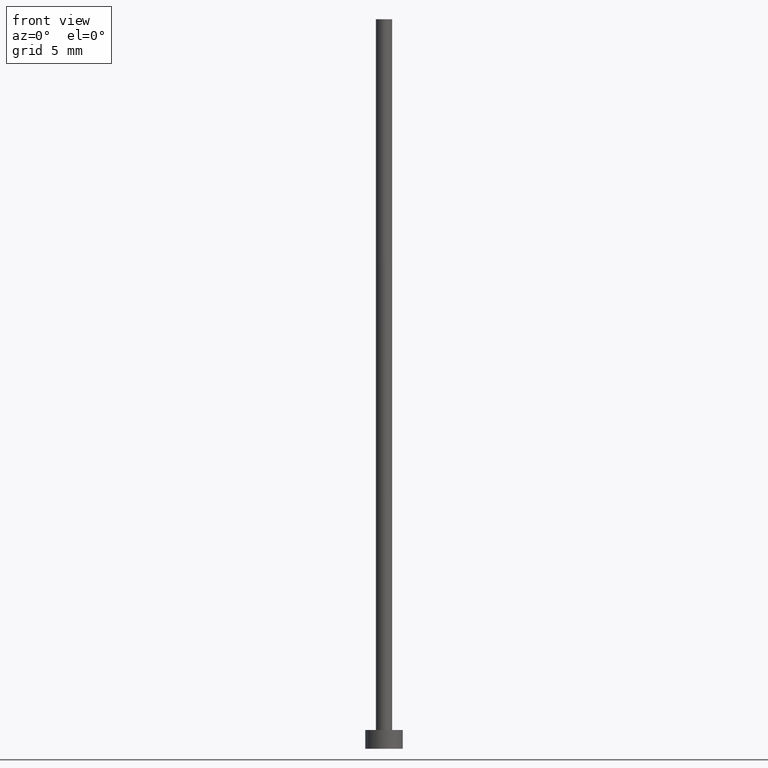
[diagram: clean part render]
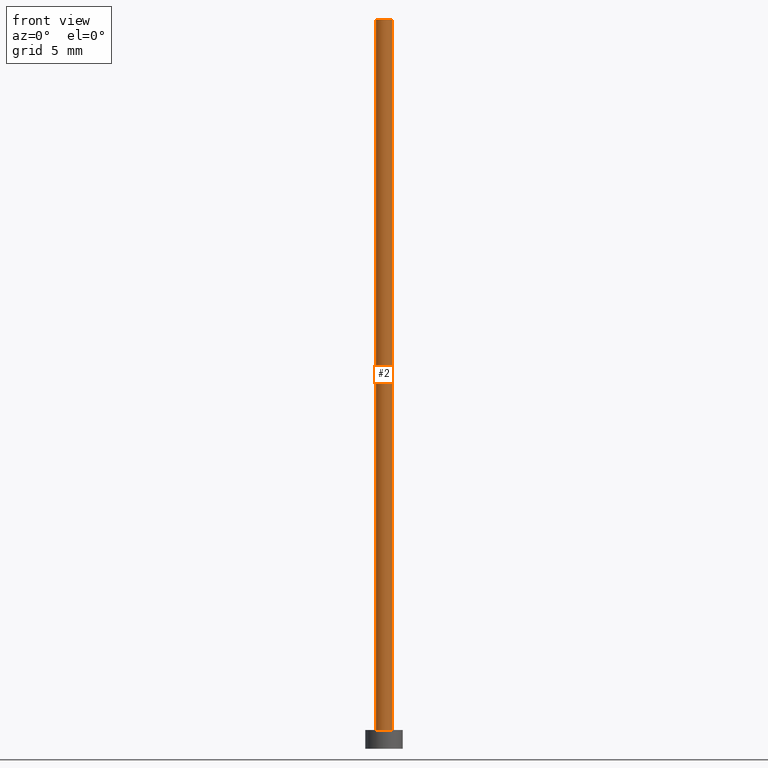
[diagram: same view with one face highlighted and labeled with its STEP entity id]
A machine part, front view. The second image highlights one B-rep face of the part: STEP entity #2.
In plain terms, the highlighted cylindrical surface (edge-blend (fillet) strip) has radius 0.65 mm, axis along (-0, -0, -1).
Its self-contained STEP definition (entity closure, byte-faithful):
#2 = ADVANCED_FACE ( 'NONE', ( #8 ), #189, .T. ) ;
#4 = CIRCLE ( 'NONE', #105, 0.6500000000000000222 ) ;
#5 = CARTESIAN_POINT ( 'NONE',  ( 0.000000000000000000, 0.000000000000000000, 58.50000000000000000 ) ) ;
#8 = FACE_OUTER_BOUND ( 'NONE', #183, .T. ) ;
#18 = CARTESIAN_POINT ( 'NONE',  ( 0.6500000000000000222, 7.960204194457794244E-17, 58.50000000000000000 ) ) ;
#20 = EDGE_CURVE ( 'NONE', #185, #58, #148, .T. ) ;
#23 = VERTEX_POINT ( 'NONE', #26 ) ;
#24 = ORIENTED_EDGE ( 'NONE', *, *, #30, .T. ) ;
#25 = VECTOR ( 'NONE', #63, 1000.000000000000000 ) ;
#26 = CARTESIAN_POINT ( 'NONE',  ( 0.6500000000000000222, 7.960204194457794244E-17, 1.500000000000000000 ) ) ;
#30 = EDGE_CURVE ( 'NONE', #58, #23, #116, .T. ) ;
#42 = CARTESIAN_POINT ( 'NONE',  ( 0.000000000000000000, 0.000000000000000000, 1.500000000000000000 ) ) ;
#58 = VERTEX_POINT ( 'NONE', #70 ) ;
#63 = DIRECTION ( 'NONE',  ( -0.000000000000000000, -0.000000000000000000, -1.000000000000000000 ) ) ;
#70 = CARTESIAN_POINT ( 'NONE',  ( -0.6500000000000000222, 0.000000000000000000, 1.500000000000000000 ) ) ;
#73 = AXIS2_PLACEMENT_3D ( 'NONE', #91, #108, #126 ) ;
#80 = LINE ( 'NONE', #180, #25 ) ;
#85 = ORIENTED_EDGE ( 'NONE', *, *, #177, .F. ) ;
#88 = DIRECTION ( 'NONE',  ( 0.000000000000000000, 0.000000000000000000, 1.000000000000000000 ) ) ;
#91 = CARTESIAN_POINT ( 'NONE',  ( 0.000000000000000000, 0.000000000000000000, 58.50000000000000000 ) ) ;
#96 = VECTOR ( 'NONE', #129, 1000.000000000000000 ) ;
#105 = AXIS2_PLACEMENT_3D ( 'NONE', #5, #88, #161 ) ;
#108 = DIRECTION ( 'NONE',  ( -0.000000000000000000, -0.000000000000000000, -1.000000000000000000 ) ) ;
#116 = CIRCLE ( 'NONE', #227, 0.6500000000000000222 ) ;
#126 = DIRECTION ( 'NONE',  ( -1.000000000000000000, 0.000000000000000000, 0.000000000000000000 ) ) ;
#129 = DIRECTION ( 'NONE',  ( -0.000000000000000000, -0.000000000000000000, -1.000000000000000000 ) ) ;
#133 = ORIENTED_EDGE ( 'NONE', *, *, #20, .T. ) ;
#148 = LINE ( 'NONE', #219, #96 ) ;
#154 = ORIENTED_EDGE ( 'NONE', *, *, #203, .F. ) ;
#161 = DIRECTION ( 'NONE',  ( 1.000000000000000000, 0.000000000000000000, 0.000000000000000000 ) ) ;
#168 = VERTEX_POINT ( 'NONE', #18 ) ;
#177 = EDGE_CURVE ( 'NONE', #168, #23, #80, .T. ) ;
#180 = CARTESIAN_POINT ( 'NONE',  ( 0.6500000000000000222, 7.960204194457794244E-17, 58.50000000000000000 ) ) ;
#183 = EDGE_LOOP ( 'NONE', ( #85, #154, #133, #24 ) ) ;
#185 = VERTEX_POINT ( 'NONE', #210 ) ;
#186 = DIRECTION ( 'NONE',  ( 1.000000000000000000, 0.000000000000000000, 0.000000000000000000 ) ) ;
#189 = CYLINDRICAL_SURFACE ( 'NONE', #73, 0.6500000000000000222 ) ;
#203 = EDGE_CURVE ( 'NONE', #185, #168, #4, .T. ) ;
#210 = CARTESIAN_POINT ( 'NONE',  ( -0.6500000000000000222, 0.000000000000000000, 58.50000000000000000 ) ) ;
#219 = CARTESIAN_POINT ( 'NONE',  ( -0.6500000000000000222, 0.000000000000000000, 58.50000000000000000 ) ) ;
#227 = AXIS2_PLACEMENT_3D ( 'NONE', #42, #248, #186 ) ;
#248 = DIRECTION ( 'NONE',  ( 0.000000000000000000, 0.000000000000000000, 1.000000000000000000 ) ) ;